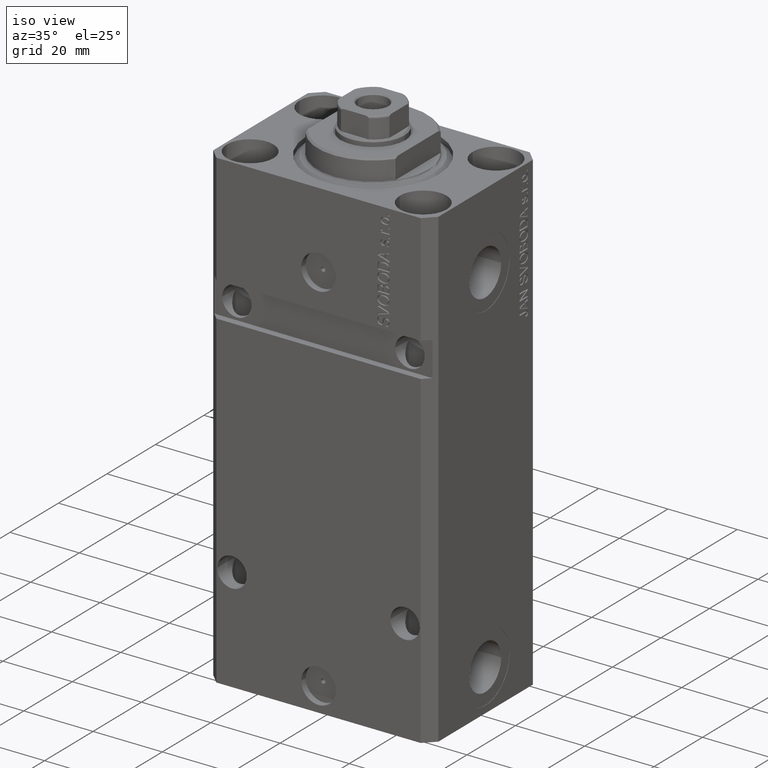
[diagram: clean part render]
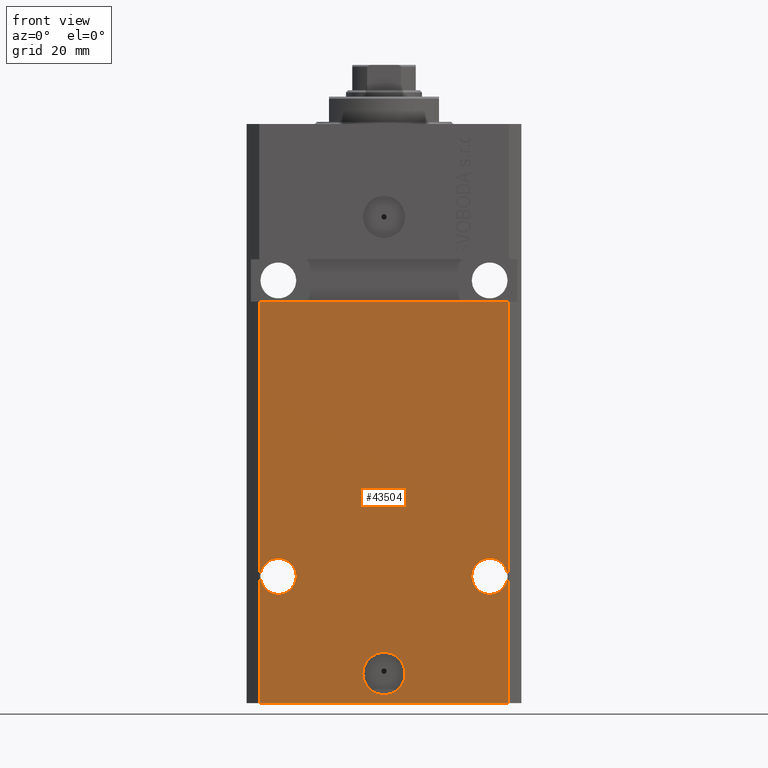
[diagram: tour spotlight — one face highlighted and labeled with its STEP entity id]
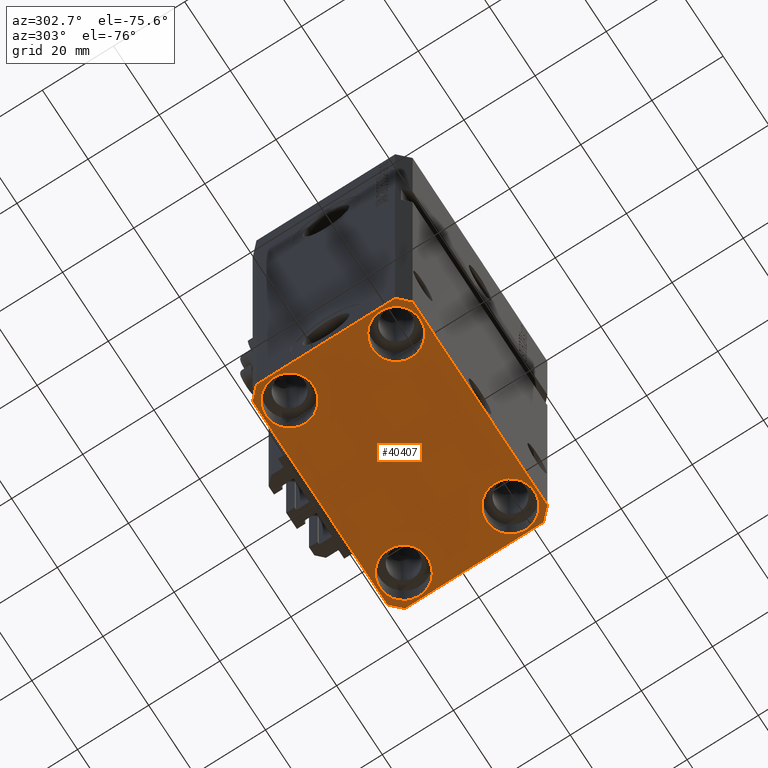
[diagram: tour spotlight — one face highlighted and labeled with its STEP entity id]
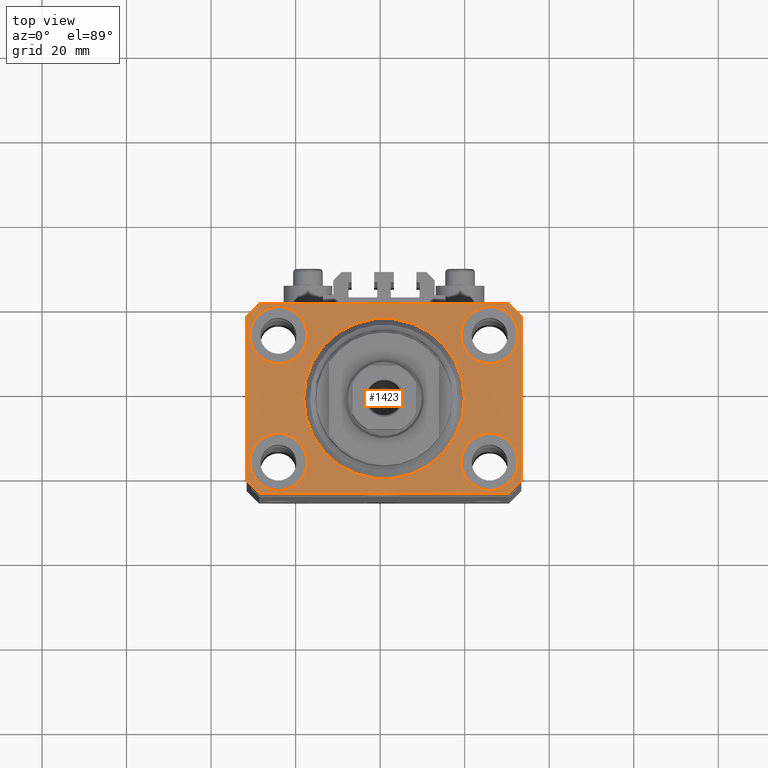
[diagram: tour spotlight — one face highlighted and labeled with its STEP entity id]
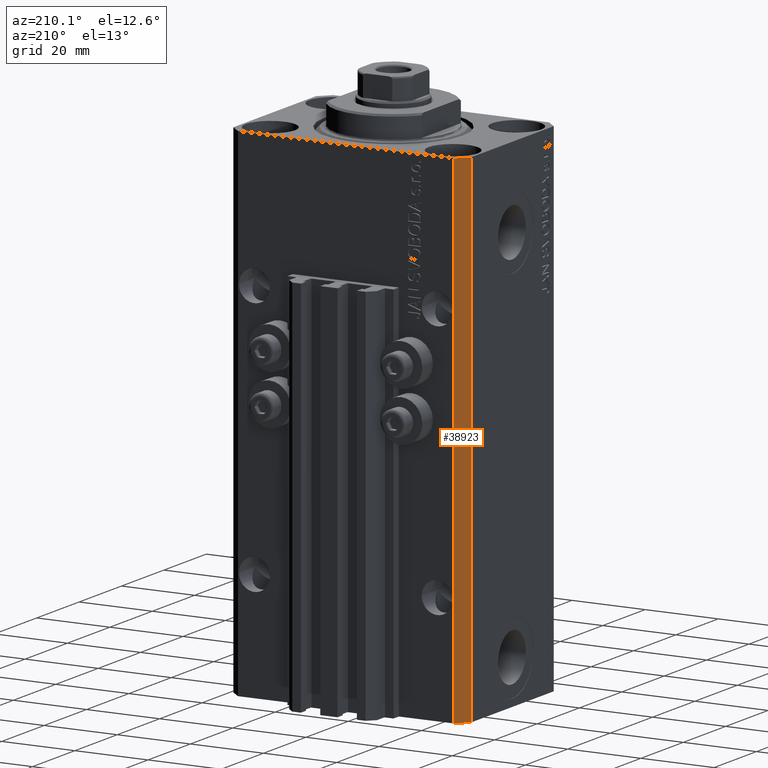
[diagram: tour spotlight — one face highlighted and labeled with its STEP entity id]
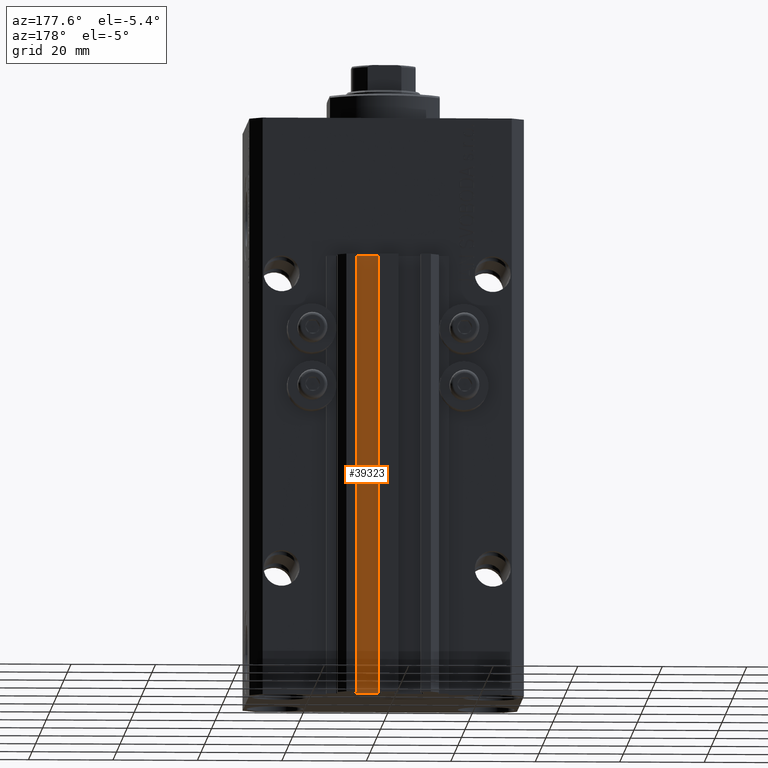
[diagram: tour spotlight — one face highlighted and labeled with its STEP entity id]
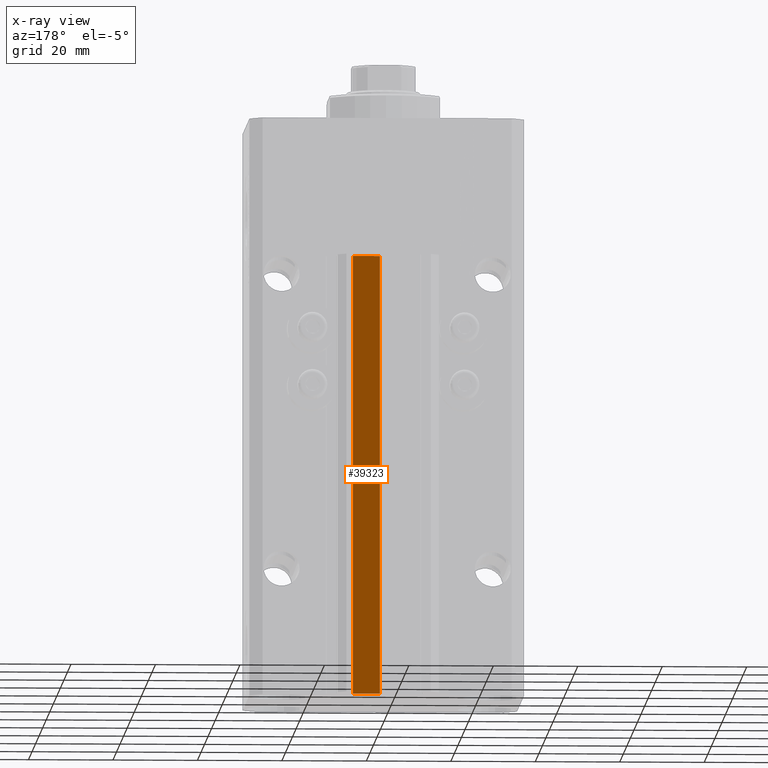
[diagram: x-ray of the same camera — body ghosted, this tour face saturated]
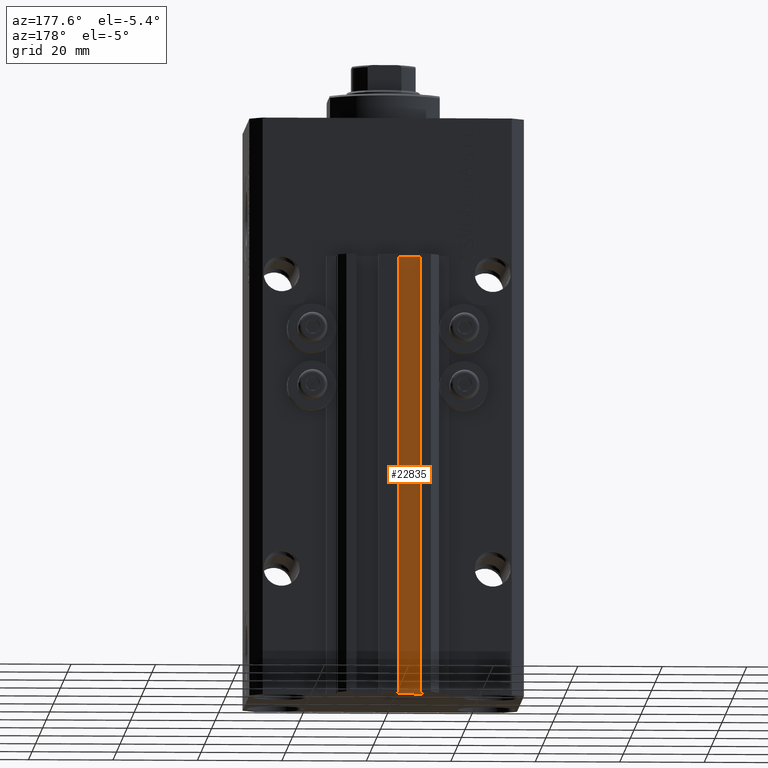
[diagram: tour spotlight — one face highlighted and labeled with its STEP entity id]
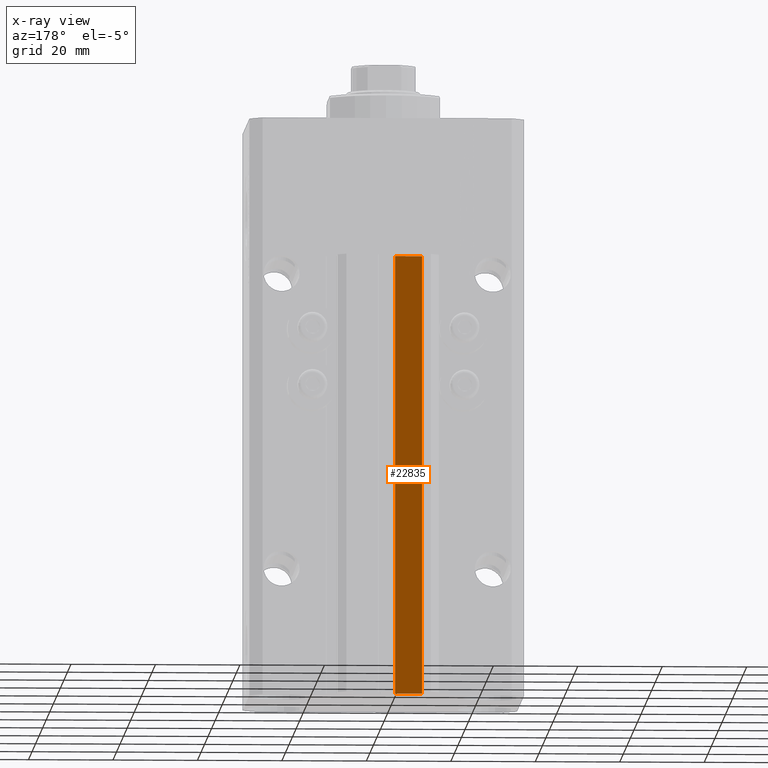
[diagram: x-ray of the same camera — body ghosted, this tour face saturated]
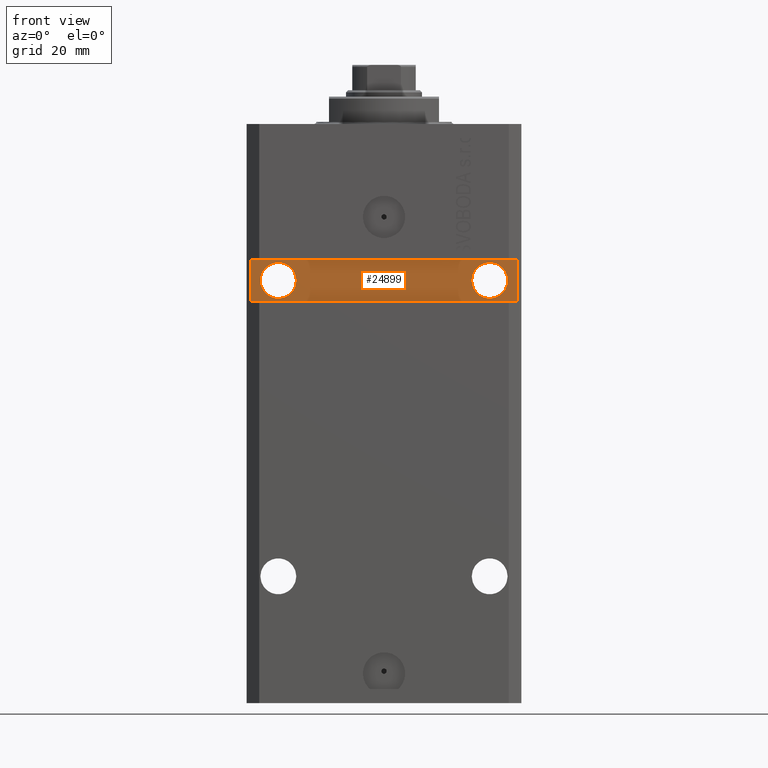
[diagram: tour spotlight — one face highlighted and labeled with its STEP entity id]
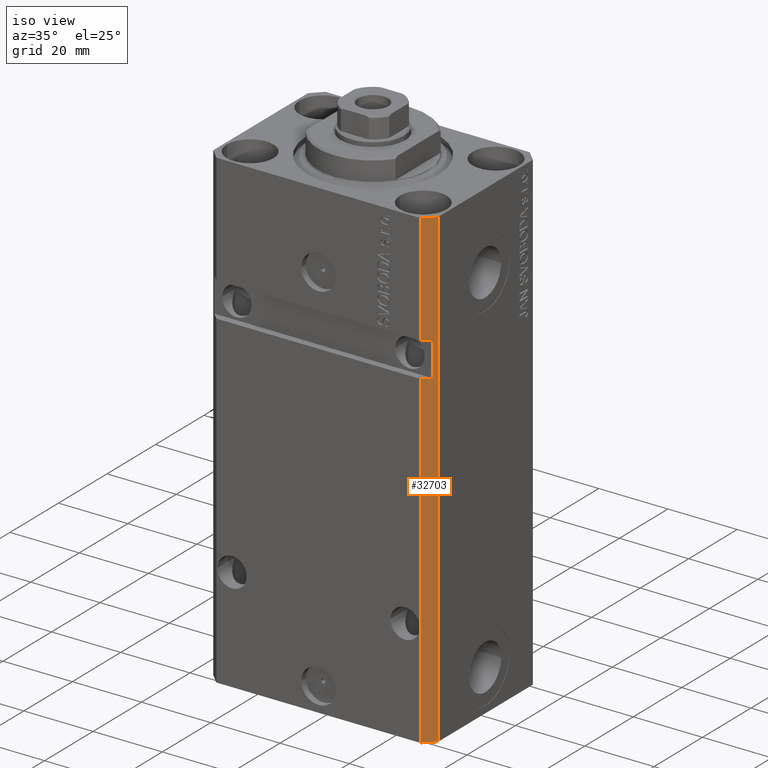
[diagram: tour spotlight — one face highlighted and labeled with its STEP entity id]
A machine part: a face-by-face anatomy tour. The part has 1103 B-rep faces; the first image is the clean iso view, then the 8 largest visible faces are spotlighted one at a time (largest first), each with its STEP entity span.

Face 1 — front view, entity #43504. In plain terms, the highlighted planar face has unit normal (0, -1, 0).
Definition (entity closure, byte-faithful):
#1151 = DIRECTION ( 'NONE',  ( -1.000000000000000000, 0.000000000000000000, 0.000000000000000000 ) ) ;
#1230 = EDGE_CURVE ( 'NONE', #31238, #47081, #7210, .T. ) ;
#2355 = AXIS2_PLACEMENT_3D ( 'NONE', #2619, #29186, #21646 ) ;
#2619 = CARTESIAN_POINT ( 'NONE',  ( 2.646188353185214061E-15, -22.49999999999949551, -130.0000000000000000 ) ) ;
#2810 = CARTESIAN_POINT ( 'NONE',  ( -32.49999999999650413, -22.49999999999949907, -41.99999999999999289 ) ) ;
#2844 = ORIENTED_EDGE ( 'NONE', *, *, #10119, .F. ) ;
#3073 = VECTOR ( 'NONE', #33973, 1000.000000000000000 ) ;
#3621 = CIRCLE ( 'NONE', #17640, 4.249999999989050536 ) ;
#3989 = ORIENTED_EDGE ( 'NONE', *, *, #33066, .F. ) ;
#4256 = CARTESIAN_POINT ( 'NONE',  ( 29.49999999999650058, -22.49999999999949196, -41.99999999999998579 ) ) ;
#5216 = VECTOR ( 'NONE', #18194, 1000.000000000000000 ) ;
#6303 = EDGE_LOOP ( 'NONE', ( #7981, #22852 ) ) ;
#6313 = VERTEX_POINT ( 'NONE', #19589 ) ;
#6452 = CARTESIAN_POINT ( 'NONE',  ( 5.000000000000008882, -22.49999999999949551, -130.0000000000000000 ) ) ;
#6650 = ORIENTED_EDGE ( 'NONE', *, *, #45312, .T. ) ;
#7210 = LINE ( 'NONE', #10869, #5216 ) ;
#7981 = ORIENTED_EDGE ( 'NONE', *, *, #43773, .F. ) ;
#8017 = EDGE_LOOP ( 'NONE', ( #3989, #2844 ) ) ;
#8244 = CARTESIAN_POINT ( 'NONE',  ( -29.49999999999650413, -22.49999999999949907, -41.99999999999999289 ) ) ;
#8386 = EDGE_LOOP ( 'NONE', ( #19110, #17556, #16876, #6650 ) ) ;
#8859 = CIRCLE ( 'NONE', #27448, 4.249999999989050536 ) ;
#9526 = ORIENTED_EDGE ( 'NONE', *, *, #35673, .F. ) ;
#10119 = EDGE_CURVE ( 'NONE', #40718, #27186, #40887, .T. ) ;
#10869 = CARTESIAN_POINT ( 'NONE',  ( -29.49999999999650413, -22.49999999999949907, -137.0000000000000000 ) ) ;
#11072 = EDGE_LOOP ( 'NONE', ( #9526, #12609 ) ) ;
#11099 = EDGE_CURVE ( 'NONE', #6313, #38261, #19930, .T. ) ;
#11169 = FACE_OUTER_BOUND ( 'NONE', #8386, .T. ) ;
#12186 = CARTESIAN_POINT ( 'NONE',  ( 20.75000000001096012, -22.49999999999949196, -107.0000000000000000 ) ) ;
#12609 = ORIENTED_EDGE ( 'NONE', *, *, #30296, .F. ) ;
#13436 = CIRCLE ( 'NONE', #15764, 4.249999999989050536 ) ;
#15065 = FACE_BOUND ( 'NONE', #11072, .T. ) ;
#15546 = DIRECTION ( 'NONE',  ( 1.176083712526788232E-16, -1.000000000000000000, 0.000000000000000000 ) ) ;
#15764 = AXIS2_PLACEMENT_3D ( 'NONE', #40063, #47140, #17147 ) ;
#16256 = VERTEX_POINT ( 'NONE', #44125 ) ;
#16876 = ORIENTED_EDGE ( 'NONE', *, *, #20557, .T. ) ;
#17147 = DIRECTION ( 'NONE',  ( 1.000000000000000000, 0.000000000000000000, 0.000000000000000000 ) ) ;
#17556 = ORIENTED_EDGE ( 'NONE', *, *, #1230, .F. ) ;
#17640 = AXIS2_PLACEMENT_3D ( 'NONE', #26017, #40880, #22366 ) ;
#18194 = DIRECTION ( 'NONE',  ( 0.000000000000000000, 0.000000000000000000, 1.000000000000000000 ) ) ;
#18856 = LINE ( 'NONE', #19348, #3073 ) ;
#19110 = ORIENTED_EDGE ( 'NONE', *, *, #29956, .F. ) ;
#19208 = DIRECTION ( 'NONE',  ( 1.000000000000000000, 1.176083712526788232E-16, 0.000000000000000000 ) ) ;
#19348 = CARTESIAN_POINT ( 'NONE',  ( -29.49999999999650413, -22.49999999999949907, -137.0000000000000000 ) ) ;
#19589 = CARTESIAN_POINT ( 'NONE',  ( -5.000000000000003553, -22.49999999999949551, -130.0000000000000000 ) ) ;
#19602 = VECTOR ( 'NONE', #37006, 1000.000000000000000 ) ;
#19930 = CIRCLE ( 'NONE', #26913, 5.000000000000006217 ) ;
#20557 = EDGE_CURVE ( 'NONE', #31238, #16256, #18856, .T. ) ;
#20892 = DIRECTION ( 'NONE',  ( -1.000000000000000000, 0.000000000000000000, 0.000000000000000000 ) ) ;
#21646 = DIRECTION ( 'NONE',  ( 1.000000000000000000, 0.000000000000000000, 0.000000000000000000 ) ) ;
#21650 = DIRECTION ( 'NONE',  ( 1.176083712526788232E-16, -1.000000000000000000, 0.000000000000000000 ) ) ;
#21671 = VERTEX_POINT ( 'NONE', #4256 ) ;
#22142 = LINE ( 'NONE', #22857, #19602 ) ;
#22366 = DIRECTION ( 'NONE',  ( 1.000000000000000000, 0.000000000000000000, 0.000000000000000000 ) ) ;
#22604 = AXIS2_PLACEMENT_3D ( 'NONE', #26046, #40909, #19208 ) ;
#22635 = CARTESIAN_POINT ( 'NONE',  ( -25.00000000000000355, -22.49999999999949907, -107.0000000000000000 ) ) ;
#22852 = ORIENTED_EDGE ( 'NONE', *, *, #11099, .F. ) ;
#22857 = CARTESIAN_POINT ( 'NONE',  ( 29.49999999999650413, -22.49999999999949196, -137.0000000000000000 ) ) ;
#23388 = CIRCLE ( 'NONE', #2355, 5.000000000000006217 ) ;
#25305 = DIRECTION ( 'NONE',  ( 1.000000000000000000, 0.000000000000000000, 0.000000000000000000 ) ) ;
#25321 = CARTESIAN_POINT ( 'NONE',  ( -29.24999999998905409, -22.49999999999949907, -107.0000000000000000 ) ) ;
#25437 = CARTESIAN_POINT ( 'NONE',  ( -29.49999999999650413, -22.49999999999949907, -137.0000000000000000 ) ) ;
#26017 = CARTESIAN_POINT ( 'NONE',  ( 25.00000000000001066, -22.49999999999949196, -107.0000000000000000 ) ) ;
#26046 = CARTESIAN_POINT ( 'NONE',  ( -29.49999999999650413, -22.49999999999949907, -137.0000000000000000 ) ) ;
#26109 = AXIS2_PLACEMENT_3D ( 'NONE', #22635, #15546, #1151 ) ;
#26285 = FACE_BOUND ( 'NONE', #8017, .T. ) ;
#26913 = AXIS2_PLACEMENT_3D ( 'NONE', #36978, #21650, #25305 ) ;
#27186 = VERTEX_POINT ( 'NONE', #36333 ) ;
#27448 = AXIS2_PLACEMENT_3D ( 'NONE', #43552, #46731, #20892 ) ;
#29144 = LINE ( 'NONE', #2810, #36806 ) ;
#29186 = DIRECTION ( 'NONE',  ( 1.176083712526788232E-16, -1.000000000000000000, 0.000000000000000000 ) ) ;
#29956 = EDGE_CURVE ( 'NONE', #47081, #21671, #29144, .T. ) ;
#30296 = EDGE_CURVE ( 'NONE', #37591, #44113, #13436, .T. ) ;
#30436 = PLANE ( 'NONE',  #22604 ) ;
#31238 = VERTEX_POINT ( 'NONE', #25437 ) ;
#33066 = EDGE_CURVE ( 'NONE', #27186, #40718, #8859, .T. ) ;
#33973 = DIRECTION ( 'NONE',  ( 1.000000000000000000, 1.176083712526788232E-16, 0.000000000000000000 ) ) ;
#35673 = EDGE_CURVE ( 'NONE', #44113, #37591, #3621, .T. ) ;
#35730 = CARTESIAN_POINT ( 'NONE',  ( 29.24999999998906119, -22.49999999999949196, -107.0000000000000000 ) ) ;
#36333 = CARTESIAN_POINT ( 'NONE',  ( -20.75000000001095302, -22.49999999999949907, -107.0000000000000000 ) ) ;
#36806 = VECTOR ( 'NONE', #46958, 1000.000000000000000 ) ;
#36978 = CARTESIAN_POINT ( 'NONE',  ( 2.646188353185214061E-15, -22.49999999999949551, -130.0000000000000000 ) ) ;
#37006 = DIRECTION ( 'NONE',  ( 0.000000000000000000, 0.000000000000000000, 1.000000000000000000 ) ) ;
#37591 = VERTEX_POINT ( 'NONE', #12186 ) ;
#38261 = VERTEX_POINT ( 'NONE', #6452 ) ;
#40063 = CARTESIAN_POINT ( 'NONE',  ( 25.00000000000001066, -22.49999999999949196, -107.0000000000000000 ) ) ;
#40718 = VERTEX_POINT ( 'NONE', #25321 ) ;
#40880 = DIRECTION ( 'NONE',  ( 1.176083712526788232E-16, -1.000000000000000000, 0.000000000000000000 ) ) ;
#40887 = CIRCLE ( 'NONE', #26109, 4.249999999989050536 ) ;
#40909 = DIRECTION ( 'NONE',  ( 1.176083712526788232E-16, -1.000000000000000000, 0.000000000000000000 ) ) ;
#43504 = ADVANCED_FACE ( 'NONE', ( #44582, #15065, #26285, #11169 ), #30436, .T. ) ;
#43552 = CARTESIAN_POINT ( 'NONE',  ( -25.00000000000000355, -22.49999999999949907, -107.0000000000000000 ) ) ;
#43773 = EDGE_CURVE ( 'NONE', #38261, #6313, #23388, .T. ) ;
#44113 = VERTEX_POINT ( 'NONE', #35730 ) ;
#44125 = CARTESIAN_POINT ( 'NONE',  ( 29.49999999999650413, -22.49999999999949196, -137.0000000000000000 ) ) ;
#44582 = FACE_BOUND ( 'NONE', #6303, .T. ) ;
#45312 = EDGE_CURVE ( 'NONE', #16256, #21671, #22142, .T. ) ;
#46731 = DIRECTION ( 'NONE',  ( 1.176083712526788232E-16, -1.000000000000000000, 0.000000000000000000 ) ) ;
#46958 = DIRECTION ( 'NONE',  ( 1.000000000000000000, 1.067522139062765303E-16, 1.067522139062765303E-16 ) ) ;
#47081 = VERTEX_POINT ( 'NONE', #8244 ) ;
#47140 = DIRECTION ( 'NONE',  ( 1.176083712526788232E-16, -1.000000000000000000, 0.000000000000000000 ) ) ;

Face 2 — auxiliary view, entity #40407. In plain terms, the highlighted planar face has unit normal (0, 0, 1).
Definition (entity closure, byte-faithful):
#5 = AXIS2_PLACEMENT_3D ( 'NONE', #24964, #13721, #47138 ) ;
#129 = EDGE_CURVE ( 'NONE', #22444, #44222, #33994, .T. ) ;
#169 = CARTESIAN_POINT ( 'NONE',  ( -18.24999999997747224, 15.00000000000000000, -137.0000000000000000 ) ) ;
#1071 = ORIENTED_EDGE ( 'NONE', *, *, #27913, .F. ) ;
#1285 = CIRCLE ( 'NONE', #2049, 6.750000000022533087 ) ;
#2049 = AXIS2_PLACEMENT_3D ( 'NONE', #41381, #30418, #8225 ) ;
#2069 = DIRECTION ( 'NONE',  ( 1.334402673828349134E-14, 1.000000000000000000, 0.000000000000000000 ) ) ;
#2270 = VERTEX_POINT ( 'NONE', #32080 ) ;
#2274 = FACE_BOUND ( 'NONE', #41077, .T. ) ;
#2330 = CIRCLE ( 'NONE', #16364, 6.750000000041541881 ) ;
#2640 = EDGE_CURVE ( 'NONE', #15336, #26915, #4099, .T. ) ;
#2757 = ORIENTED_EDGE ( 'NONE', *, *, #39141, .F. ) ;
#3015 = ORIENTED_EDGE ( 'NONE', *, *, #129, .T. ) ;
#3073 = VECTOR ( 'NONE', #33973, 1000.000000000000000 ) ;
#3831 = ORIENTED_EDGE ( 'NONE', *, *, #14079, .T. ) ;
#4099 = LINE ( 'NONE', #18975, #30079 ) ;
#4329 = EDGE_CURVE ( 'NONE', #16256, #29843, #39800, .T. ) ;
#4417 = VERTEX_POINT ( 'NONE', #47599 ) ;
#5088 = CIRCLE ( 'NONE', #29963, 6.750000000022533087 ) ;
#5188 = AXIS2_PLACEMENT_3D ( 'NONE', #19072, #22742, #18596 ) ;
#5979 = CARTESIAN_POINT ( 'NONE',  ( 32.49999999999651124, -19.49999999999949196, -137.0000000000000000 ) ) ;
#6114 = DIRECTION ( 'NONE',  ( 1.000000000000000000, 0.000000000000000000, 0.000000000000000000 ) ) ;
#6389 = CARTESIAN_POINT ( 'NONE',  ( 24.99999999999999645, 15.00000000000000888, -137.0000000000000000 ) ) ;
#6475 = LINE ( 'NONE', #36220, #13302 ) ;
#6682 = VERTEX_POINT ( 'NONE', #28768 ) ;
#7681 = LINE ( 'NONE', #29874, #11550 ) ;
#8225 = DIRECTION ( 'NONE',  ( 1.000000000000000000, 0.000000000000000000, 0.000000000000000000 ) ) ;
#9973 = VERTEX_POINT ( 'NONE', #169 ) ;
#10053 = VECTOR ( 'NONE', #12447, 1000.000000000000000 ) ;
#10200 = AXIS2_PLACEMENT_3D ( 'NONE', #36349, #47797, #6114 ) ;
#10232 = EDGE_CURVE ( 'NONE', #2270, #9973, #5088, .T. ) ;
#10661 = AXIS2_PLACEMENT_3D ( 'NONE', #24203, #32489, #22215 ) ;
#10715 = ORIENTED_EDGE ( 'NONE', *, *, #45756, .T. ) ;
#10989 = DIRECTION ( 'NONE',  ( -0.000000000000000000, -0.000000000000000000, 1.000000000000000000 ) ) ;
#11550 = VECTOR ( 'NONE', #17529, 1000.000000000000114 ) ;
#11837 = VERTEX_POINT ( 'NONE', #30884 ) ;
#12447 = DIRECTION ( 'NONE',  ( 0.000000000000000000, -1.000000000000000000, 0.000000000000000000 ) ) ;
#12458 = ORIENTED_EDGE ( 'NONE', *, *, #14704, .T. ) ;
#12767 = DIRECTION ( 'NONE',  ( -1.000000000000000000, -2.352167425053553784E-16, 0.000000000000000000 ) ) ;
#12923 = ORIENTED_EDGE ( 'NONE', *, *, #20557, .F. ) ;
#13302 = VECTOR ( 'NONE', #2069, 1000.000000000000000 ) ;
#13651 = CARTESIAN_POINT ( 'NONE',  ( -25.00000000000000355, -15.00000000000000000, -137.0000000000000000 ) ) ;
#13721 = DIRECTION ( 'NONE',  ( -0.000000000000000000, -0.000000000000000000, 1.000000000000000000 ) ) ;
#14079 = EDGE_CURVE ( 'NONE', #9973, #2270, #1285, .T. ) ;
#14704 = EDGE_CURVE ( 'NONE', #32696, #11837, #30133, .T. ) ;
#14852 = CARTESIAN_POINT ( 'NONE',  ( -29.49999999999650413, 22.49999999999949907, -137.0000000000000000 ) ) ;
#15336 = VERTEX_POINT ( 'NONE', #19596 ) ;
#15394 = EDGE_LOOP ( 'NONE', ( #41307, #12458 ) ) ;
#16256 = VERTEX_POINT ( 'NONE', #44125 ) ;
#16364 = AXIS2_PLACEMENT_3D ( 'NONE', #13651, #43406, #18979 ) ;
#17153 = PLANE ( 'NONE',  #47443 ) ;
#17243 = DIRECTION ( 'NONE',  ( -0.000000000000000000, -0.000000000000000000, 1.000000000000000000 ) ) ;
#17529 = DIRECTION ( 'NONE',  ( 0.7071067811865474617, -0.7071067811865474617, 0.000000000000000000 ) ) ;
#18054 = VERTEX_POINT ( 'NONE', #44856 ) ;
#18517 = FACE_BOUND ( 'NONE', #19892, .T. ) ;
#18596 = DIRECTION ( 'NONE',  ( 1.000000000000000000, 0.000000000000000000, 0.000000000000000000 ) ) ;
#18650 = EDGE_LOOP ( 'NONE', ( #2757, #33746, #1071, #32759, #12923, #38943, #29800, #21469 ) ) ;
#18856 = LINE ( 'NONE', #19348, #3073 ) ;
#18944 = EDGE_CURVE ( 'NONE', #45540, #18054, #45847, .T. ) ;
#18975 = CARTESIAN_POINT ( 'NONE',  ( 32.49999999999702993, 19.49999999999945999, -137.0000000000000000 ) ) ;
#18979 = DIRECTION ( 'NONE',  ( 1.000000000000000000, 0.000000000000000000, 0.000000000000000000 ) ) ;
#19072 = CARTESIAN_POINT ( 'NONE',  ( 24.99999999999999645, 15.00000000000000888, -137.0000000000000000 ) ) ;
#19348 = CARTESIAN_POINT ( 'NONE',  ( -29.49999999999650413, -22.49999999999949907, -137.0000000000000000 ) ) ;
#19596 = CARTESIAN_POINT ( 'NONE',  ( 32.49999999999702993, 19.49999999999945999, -137.0000000000000000 ) ) ;
#19892 = EDGE_LOOP ( 'NONE', ( #42096, #31424 ) ) ;
#20557 = EDGE_CURVE ( 'NONE', #31238, #16256, #18856, .T. ) ;
#21355 = LINE ( 'NONE', #31840, #32798 ) ;
#21469 = ORIENTED_EDGE ( 'NONE', *, *, #47630, .F. ) ;
#21665 = EDGE_CURVE ( 'NONE', #18054, #31238, #7681, .T. ) ;
#22188 = FACE_BOUND ( 'NONE', #15394, .T. ) ;
#22215 = DIRECTION ( 'NONE',  ( 1.000000000000000000, 0.000000000000000000, 0.000000000000000000 ) ) ;
#22444 = VERTEX_POINT ( 'NONE', #34644 ) ;
#22742 = DIRECTION ( 'NONE',  ( -0.000000000000000000, -0.000000000000000000, 1.000000000000000000 ) ) ;
#23234 = CARTESIAN_POINT ( 'NONE',  ( -32.49999999999650413, 19.49999999999949907, -137.0000000000000000 ) ) ;
#24203 = CARTESIAN_POINT ( 'NONE',  ( 25.00000000000000355, -15.00000000000000000, -137.0000000000000000 ) ) ;
#24964 = CARTESIAN_POINT ( 'NONE',  ( 25.00000000000000355, -15.00000000000000000, -137.0000000000000000 ) ) ;
#24972 = EDGE_CURVE ( 'NONE', #6682, #4417, #2330, .T. ) ;
#25437 = CARTESIAN_POINT ( 'NONE',  ( -29.49999999999650413, -22.49999999999949907, -137.0000000000000000 ) ) ;
#25612 = DIRECTION ( 'NONE',  ( 1.000000000000000000, 0.000000000000000000, -0.000000000000000000 ) ) ;
#25634 = DIRECTION ( 'NONE',  ( 1.000000000000000000, 0.000000000000000000, 0.000000000000000000 ) ) ;
#26359 = EDGE_CURVE ( 'NONE', #11837, #32696, #45209, .T. ) ;
#26915 = VERTEX_POINT ( 'NONE', #43281 ) ;
#27913 = EDGE_CURVE ( 'NONE', #29843, #15336, #6475, .T. ) ;
#28367 = ORIENTED_EDGE ( 'NONE', *, *, #10232, .T. ) ;
#28458 = CARTESIAN_POINT ( 'NONE',  ( -25.00000000000000355, 15.00000000000000000, -137.0000000000000000 ) ) ;
#28603 = LINE ( 'NONE', #42993, #47411 ) ;
#28768 = CARTESIAN_POINT ( 'NONE',  ( -31.75000000004154899, -15.00000000000000000, -137.0000000000000000 ) ) ;
#29735 = FACE_BOUND ( 'NONE', #38183, .T. ) ;
#29800 = ORIENTED_EDGE ( 'NONE', *, *, #18944, .F. ) ;
#29843 = VERTEX_POINT ( 'NONE', #5979 ) ;
#29874 = CARTESIAN_POINT ( 'NONE',  ( -32.49999999999650413, -19.49999999999949907, -137.0000000000000000 ) ) ;
#29963 = AXIS2_PLACEMENT_3D ( 'NONE', #28458, #17243, #47230 ) ;
#30079 = VECTOR ( 'NONE', #32978, 1000.000000000000000 ) ;
#30133 = CIRCLE ( 'NONE', #10661, 6.749999999977465137 ) ;
#30418 = DIRECTION ( 'NONE',  ( -0.000000000000000000, -0.000000000000000000, 1.000000000000000000 ) ) ;
#30884 = CARTESIAN_POINT ( 'NONE',  ( 18.25000000002253842, -15.00000000000000000, -137.0000000000000000 ) ) ;
#30915 = VECTOR ( 'NONE', #43452, 1000.000000000000000 ) ;
#31238 = VERTEX_POINT ( 'NONE', #25437 ) ;
#31262 = AXIS2_PLACEMENT_3D ( 'NONE', #6389, #10989, #25634 ) ;
#31424 = ORIENTED_EDGE ( 'NONE', *, *, #44243, .T. ) ;
#31840 = CARTESIAN_POINT ( 'NONE',  ( -29.49999999999650413, 22.49999999999949907, -137.0000000000000000 ) ) ;
#32045 = FACE_OUTER_BOUND ( 'NONE', #18650, .T. ) ;
#32080 = CARTESIAN_POINT ( 'NONE',  ( -31.75000000002253842, 15.00000000000000000, -137.0000000000000000 ) ) ;
#32489 = DIRECTION ( 'NONE',  ( -0.000000000000000000, -0.000000000000000000, 1.000000000000000000 ) ) ;
#32696 = VERTEX_POINT ( 'NONE', #44143 ) ;
#32759 = ORIENTED_EDGE ( 'NONE', *, *, #4329, .F. ) ;
#32798 = VECTOR ( 'NONE', #46704, 1000.000000000000114 ) ;
#32978 = DIRECTION ( 'NONE',  ( -0.7071067811865352493, 0.7071067811865597852, 0.000000000000000000 ) ) ;
#33543 = CIRCLE ( 'NONE', #10200, 6.750000000041541881 ) ;
#33746 = ORIENTED_EDGE ( 'NONE', *, *, #2640, .F. ) ;
#33973 = DIRECTION ( 'NONE',  ( 1.000000000000000000, 1.176083712526788232E-16, 0.000000000000000000 ) ) ;
#33994 = CIRCLE ( 'NONE', #5188, 6.749999999958452790 ) ;
#34644 = CARTESIAN_POINT ( 'NONE',  ( 18.25000000004154543, 15.00000000000000888, -137.0000000000000000 ) ) ;
#34673 = CARTESIAN_POINT ( 'NONE',  ( 31.74999999995845101, 15.00000000000000888, -137.0000000000000000 ) ) ;
#35904 = CARTESIAN_POINT ( 'NONE',  ( 29.49999999999650413, -22.49999999999949196, -137.0000000000000000 ) ) ;
#36220 = CARTESIAN_POINT ( 'NONE',  ( 32.49999999999651124, -19.49999999999949196, -137.0000000000000000 ) ) ;
#36349 = CARTESIAN_POINT ( 'NONE',  ( -25.00000000000000355, -15.00000000000000000, -137.0000000000000000 ) ) ;
#37050 = CARTESIAN_POINT ( 'NONE',  ( 0.000000000000000000, 0.000000000000000000, -137.0000000000000000 ) ) ;
#38183 = EDGE_LOOP ( 'NONE', ( #28367, #3831 ) ) ;
#38374 = VERTEX_POINT ( 'NONE', #14852 ) ;
#38943 = ORIENTED_EDGE ( 'NONE', *, *, #21665, .F. ) ;
#39141 = EDGE_CURVE ( 'NONE', #26915, #38374, #28603, .T. ) ;
#39800 = LINE ( 'NONE', #35904, #30915 ) ;
#40407 = ADVANCED_FACE ( 'NONE', ( #18517, #22188, #2274, #29735, #32045 ), #17153, .F. ) ;
#41077 = EDGE_LOOP ( 'NONE', ( #3015, #10715 ) ) ;
#41307 = ORIENTED_EDGE ( 'NONE', *, *, #26359, .T. ) ;
#41381 = CARTESIAN_POINT ( 'NONE',  ( -25.00000000000000355, 15.00000000000000000, -137.0000000000000000 ) ) ;
#42096 = ORIENTED_EDGE ( 'NONE', *, *, #24972, .T. ) ;
#42993 = CARTESIAN_POINT ( 'NONE',  ( 29.49999999999707967, 22.49999999999951328, -137.0000000000000000 ) ) ;
#43281 = CARTESIAN_POINT ( 'NONE',  ( 29.49999999999707967, 22.49999999999951328, -137.0000000000000000 ) ) ;
#43406 = DIRECTION ( 'NONE',  ( -0.000000000000000000, -0.000000000000000000, 1.000000000000000000 ) ) ;
#43452 = DIRECTION ( 'NONE',  ( 0.7071067811865483499, 0.7071067811865466846, 0.000000000000000000 ) ) ;
#44125 = CARTESIAN_POINT ( 'NONE',  ( 29.49999999999650413, -22.49999999999949196, -137.0000000000000000 ) ) ;
#44143 = CARTESIAN_POINT ( 'NONE',  ( 31.74999999997746869, -15.00000000000000000, -137.0000000000000000 ) ) ;
#44222 = VERTEX_POINT ( 'NONE', #34673 ) ;
#44243 = EDGE_CURVE ( 'NONE', #4417, #6682, #33543, .T. ) ;
#44606 = DIRECTION ( 'NONE',  ( 0.000000000000000000, 0.000000000000000000, 1.000000000000000000 ) ) ;
#44856 = CARTESIAN_POINT ( 'NONE',  ( -32.49999999999650413, -19.49999999999949907, -137.0000000000000000 ) ) ;
#45209 = CIRCLE ( 'NONE', #5, 6.749999999977465137 ) ;
#45540 = VERTEX_POINT ( 'NONE', #23234 ) ;
#45756 = EDGE_CURVE ( 'NONE', #44222, #22444, #46843, .T. ) ;
#45847 = LINE ( 'NONE', #46093, #10053 ) ;
#46093 = CARTESIAN_POINT ( 'NONE',  ( -32.49999999999650413, 19.49999999999949907, -137.0000000000000000 ) ) ;
#46704 = DIRECTION ( 'NONE',  ( -0.7071067811865474617, -0.7071067811865474617, 0.000000000000000000 ) ) ;
#46843 = CIRCLE ( 'NONE', #31262, 6.749999999958452790 ) ;
#47138 = DIRECTION ( 'NONE',  ( 1.000000000000000000, 0.000000000000000000, 0.000000000000000000 ) ) ;
#47230 = DIRECTION ( 'NONE',  ( 1.000000000000000000, 0.000000000000000000, 0.000000000000000000 ) ) ;
#47411 = VECTOR ( 'NONE', #12767, 1000.000000000000000 ) ;
#47443 = AXIS2_PLACEMENT_3D ( 'NONE', #37050, #44606, #25612 ) ;
#47599 = CARTESIAN_POINT ( 'NONE',  ( -18.24999999995845812, -15.00000000000000000, -137.0000000000000000 ) ) ;
#47630 = EDGE_CURVE ( 'NONE', #38374, #45540, #21355, .T. ) ;
#47797 = DIRECTION ( 'NONE',  ( -0.000000000000000000, -0.000000000000000000, 1.000000000000000000 ) ) ;

Face 3 — top view, entity #1423. In plain terms, the highlighted planar face has unit normal (0, 0, 1).
Definition (entity closure, byte-faithful):
#566 = ORIENTED_EDGE ( 'NONE', *, *, #8785, .F. ) ;
#639 = ORIENTED_EDGE ( 'NONE', *, *, #30215, .T. ) ;
#1315 = LINE ( 'NONE', #20115, #15927 ) ;
#1423 = ADVANCED_FACE ( 'NONE', ( #23044, #7934, #16872, #26948, #8423, #38177 ), #19649, .T. ) ;
#1560 = DIRECTION ( 'NONE',  ( -1.000000000000000000, -2.352167425053553784E-16, 0.000000000000000000 ) ) ;
#2104 = VECTOR ( 'NONE', #18962, 1000.000000000000000 ) ;
#2163 = CARTESIAN_POINT ( 'NONE',  ( -29.49999999999650413, -22.49999999999949907, 0.000000000000000000 ) ) ;
#2348 = DIRECTION ( 'NONE',  ( 0.000000000000000000, 0.000000000000000000, 1.000000000000000000 ) ) ;
#2672 = ORIENTED_EDGE ( 'NONE', *, *, #14745, .F. ) ;
#2723 = CARTESIAN_POINT ( 'NONE',  ( -32.49999999999650413, -19.49999999999949907, 0.000000000000000000 ) ) ;
#3358 = CARTESIAN_POINT ( 'NONE',  ( 0.000000000000000000, 0.000000000000000000, 0.000000000000000000 ) ) ;
#3790 = VECTOR ( 'NONE', #20308, 1000.000000000000000 ) ;
#3954 = ORIENTED_EDGE ( 'NONE', *, *, #28406, .F. ) ;
#4262 = ORIENTED_EDGE ( 'NONE', *, *, #32099, .T. ) ;
#4283 = DIRECTION ( 'NONE',  ( 1.334402673828349134E-14, 1.000000000000000000, 0.000000000000000000 ) ) ;
#4603 = EDGE_CURVE ( 'NONE', #42597, #23932, #14119, .T. ) ;
#4729 = EDGE_CURVE ( 'NONE', #16688, #32402, #29932, .T. ) ;
#4816 = DIRECTION ( 'NONE',  ( 0.000000000000000000, 0.000000000000000000, 1.000000000000000000 ) ) ;
#5404 = EDGE_LOOP ( 'NONE', ( #6743, #13097 ) ) ;
#5635 = CARTESIAN_POINT ( 'NONE',  ( -31.75000000002253842, 15.00000000000000000, 0.000000000000000000 ) ) ;
#5898 = DIRECTION ( 'NONE',  ( 0.000000000000000000, 0.000000000000000000, 1.000000000000000000 ) ) ;
#5972 = VECTOR ( 'NONE', #10695, 1000.000000000000000 ) ;
#6430 = ORIENTED_EDGE ( 'NONE', *, *, #47322, .F. ) ;
#6440 = CARTESIAN_POINT ( 'NONE',  ( -32.49999999999650413, -19.49999999999949907, 0.000000000000000000 ) ) ;
#6743 = ORIENTED_EDGE ( 'NONE', *, *, #17902, .F. ) ;
#6799 = CARTESIAN_POINT ( 'NONE',  ( -29.49999999999650413, -22.49999999999949907, 0.000000000000000000 ) ) ;
#7113 = CIRCLE ( 'NONE', #34361, 6.749999999977465137 ) ;
#7927 = DIRECTION ( 'NONE',  ( 1.000000000000000000, 0.000000000000000000, 0.000000000000000000 ) ) ;
#7934 = FACE_BOUND ( 'NONE', #40766, .T. ) ;
#8374 = EDGE_CURVE ( 'NONE', #40316, #39513, #1315, .T. ) ;
#8423 = FACE_BOUND ( 'NONE', #5404, .T. ) ;
#8631 = AXIS2_PLACEMENT_3D ( 'NONE', #18438, #22111, #37456 ) ;
#8785 = EDGE_CURVE ( 'NONE', #36329, #36446, #43976, .T. ) ;
#9109 = DIRECTION ( 'NONE',  ( -0.7071067811865474617, -0.7071067811865474617, 0.000000000000000000 ) ) ;
#9232 = AXIS2_PLACEMENT_3D ( 'NONE', #31164, #4816, #19703 ) ;
#10695 = DIRECTION ( 'NONE',  ( 1.000000000000000000, 1.176083712526788232E-16, 0.000000000000000000 ) ) ;
#10766 = CIRCLE ( 'NONE', #9232, 6.750000000041541881 ) ;
#11552 = AXIS2_PLACEMENT_3D ( 'NONE', #13329, #2348, #35768 ) ;
#11579 = DIRECTION ( 'NONE',  ( 0.000000000000000000, 0.000000000000000000, 1.000000000000000000 ) ) ;
#12124 = ORIENTED_EDGE ( 'NONE', *, *, #18739, .T. ) ;
#13097 = ORIENTED_EDGE ( 'NONE', *, *, #17394, .F. ) ;
#13329 = CARTESIAN_POINT ( 'NONE',  ( -25.00000000000000355, 15.00000000000000000, 0.000000000000000000 ) ) ;
#14021 = CIRCLE ( 'NONE', #22581, 6.750000000041541881 ) ;
#14119 = LINE ( 'NONE', #6799, #5972 ) ;
#14745 = EDGE_CURVE ( 'NONE', #42833, #44251, #42613, .T. ) ;
#15447 = CIRCLE ( 'NONE', #11552, 6.750000000022533087 ) ;
#15902 = DIRECTION ( 'NONE',  ( 0.000000000000000000, 0.000000000000000000, 1.000000000000000000 ) ) ;
#15927 = VECTOR ( 'NONE', #1560, 1000.000000000000000 ) ;
#15949 = CARTESIAN_POINT ( 'NONE',  ( 29.49999999999707967, 22.49999999999951328, 0.000000000000000000 ) ) ;
#16365 = CARTESIAN_POINT ( 'NONE',  ( -29.49999999999650413, 22.49999999999949907, 0.000000000000000000 ) ) ;
#16463 = EDGE_LOOP ( 'NONE', ( #6430, #19781 ) ) ;
#16688 = VERTEX_POINT ( 'NONE', #20829 ) ;
#16872 = FACE_BOUND ( 'NONE', #16463, .T. ) ;
#17032 = EDGE_LOOP ( 'NONE', ( #27492, #639, #18982, #22614, #24721, #4262, #20662, #12124 ) ) ;
#17227 = ORIENTED_EDGE ( 'NONE', *, *, #17680, .F. ) ;
#17394 = EDGE_CURVE ( 'NONE', #47953, #37910, #37216, .T. ) ;
#17680 = EDGE_CURVE ( 'NONE', #36446, #36329, #15447, .T. ) ;
#17761 = AXIS2_PLACEMENT_3D ( 'NONE', #3358, #26023, #25096 ) ;
#17902 = EDGE_CURVE ( 'NONE', #37910, #47953, #46587, .T. ) ;
#18211 = CARTESIAN_POINT ( 'NONE',  ( 31.74999999995845101, 15.00000000000000888, 0.000000000000000000 ) ) ;
#18438 = CARTESIAN_POINT ( 'NONE',  ( 24.99999999999999645, 15.00000000000000888, 0.000000000000000000 ) ) ;
#18455 = EDGE_CURVE ( 'NONE', #22294, #18518, #10766, .T. ) ;
#18518 = VERTEX_POINT ( 'NONE', #20651 ) ;
#18557 = AXIS2_PLACEMENT_3D ( 'NONE', #37914, #11579, #7927 ) ;
#18739 = EDGE_CURVE ( 'NONE', #47807, #40316, #38825, .T. ) ;
#18962 = DIRECTION ( 'NONE',  ( 0.000000000000000000, -1.000000000000000000, 0.000000000000000000 ) ) ;
#18982 = ORIENTED_EDGE ( 'NONE', *, *, #4729, .T. ) ;
#19473 = CARTESIAN_POINT ( 'NONE',  ( -19.00000000000000000, 2.326828918379970970E-15, 0.000000000000000000 ) ) ;
#19649 = PLANE ( 'NONE',  #20862 ) ;
#19703 = DIRECTION ( 'NONE',  ( 1.000000000000000000, 0.000000000000000000, 0.000000000000000000 ) ) ;
#19781 = ORIENTED_EDGE ( 'NONE', *, *, #34118, .F. ) ;
#19865 = AXIS2_PLACEMENT_3D ( 'NONE', #27128, #15902, #31277 ) ;
#20115 = CARTESIAN_POINT ( 'NONE',  ( 29.49999999999707967, 22.49999999999951328, 0.000000000000000000 ) ) ;
#20308 = DIRECTION ( 'NONE',  ( -0.7071067811865352493, 0.7071067811865597852, 0.000000000000000000 ) ) ;
#20356 = DIRECTION ( 'NONE',  ( 0.7071067811865483499, 0.7071067811865466846, 0.000000000000000000 ) ) ;
#20651 = CARTESIAN_POINT ( 'NONE',  ( -31.75000000004154899, -15.00000000000000000, 0.000000000000000000 ) ) ;
#20662 = ORIENTED_EDGE ( 'NONE', *, *, #27575, .T. ) ;
#20829 = CARTESIAN_POINT ( 'NONE',  ( -32.49999999999650413, 19.49999999999949907, 0.000000000000000000 ) ) ;
#20836 = LINE ( 'NONE', #23771, #30642 ) ;
#20862 = AXIS2_PLACEMENT_3D ( 'NONE', #46631, #5898, #42721 ) ;
#21869 = CARTESIAN_POINT ( 'NONE',  ( 19.00000000000000000, 0.000000000000000000, 0.000000000000000000 ) ) ;
#22111 = DIRECTION ( 'NONE',  ( 0.000000000000000000, 0.000000000000000000, 1.000000000000000000 ) ) ;
#22294 = VERTEX_POINT ( 'NONE', #45856 ) ;
#22581 = AXIS2_PLACEMENT_3D ( 'NONE', #47349, #28822, #47816 ) ;
#22614 = ORIENTED_EDGE ( 'NONE', *, *, #45769, .T. ) ;
#23044 = FACE_BOUND ( 'NONE', #42868, .T. ) ;
#23293 = DIRECTION ( 'NONE',  ( 1.000000000000000000, 0.000000000000000000, 0.000000000000000000 ) ) ;
#23771 = CARTESIAN_POINT ( 'NONE',  ( 29.49999999999650413, -22.49999999999949196, 0.000000000000000000 ) ) ;
#23778 = CARTESIAN_POINT ( 'NONE',  ( 24.99999999999999645, 15.00000000000000888, 0.000000000000000000 ) ) ;
#23932 = VERTEX_POINT ( 'NONE', #32382 ) ;
#24053 = VERTEX_POINT ( 'NONE', #18211 ) ;
#24721 = ORIENTED_EDGE ( 'NONE', *, *, #4603, .T. ) ;
#25096 = DIRECTION ( 'NONE',  ( 1.000000000000000000, 0.000000000000000000, 0.000000000000000000 ) ) ;
#25145 = CARTESIAN_POINT ( 'NONE',  ( 31.74999999997746869, -15.00000000000000000, 0.000000000000000000 ) ) ;
#25871 = LINE ( 'NONE', #2723, #41358 ) ;
#26023 = DIRECTION ( 'NONE',  ( 0.000000000000000000, 0.000000000000000000, 1.000000000000000000 ) ) ;
#26884 = CARTESIAN_POINT ( 'NONE',  ( 32.49999999999702993, 19.49999999999945999, 0.000000000000000000 ) ) ;
#26948 = FACE_BOUND ( 'NONE', #35635, .T. ) ;
#27128 = CARTESIAN_POINT ( 'NONE',  ( -25.00000000000000355, 15.00000000000000000, 0.000000000000000000 ) ) ;
#27418 = LINE ( 'NONE', #34489, #38337 ) ;
#27492 = ORIENTED_EDGE ( 'NONE', *, *, #8374, .T. ) ;
#27575 = EDGE_CURVE ( 'NONE', #40993, #47807, #33099, .T. ) ;
#28406 = EDGE_CURVE ( 'NONE', #44251, #42833, #7113, .T. ) ;
#28783 = CARTESIAN_POINT ( 'NONE',  ( 32.49999999999702993, 19.49999999999945999, 0.000000000000000000 ) ) ;
#28822 = DIRECTION ( 'NONE',  ( 0.000000000000000000, 0.000000000000000000, 1.000000000000000000 ) ) ;
#29932 = LINE ( 'NONE', #42123, #2104 ) ;
#30215 = EDGE_CURVE ( 'NONE', #39513, #16688, #27418, .T. ) ;
#30642 = VECTOR ( 'NONE', #20356, 1000.000000000000000 ) ;
#31164 = CARTESIAN_POINT ( 'NONE',  ( -25.00000000000000355, -15.00000000000000000, 0.000000000000000000 ) ) ;
#31277 = DIRECTION ( 'NONE',  ( 1.000000000000000000, 0.000000000000000000, 0.000000000000000000 ) ) ;
#32099 = EDGE_CURVE ( 'NONE', #23932, #40993, #20836, .T. ) ;
#32382 = CARTESIAN_POINT ( 'NONE',  ( 29.49999999999650413, -22.49999999999949196, 0.000000000000000000 ) ) ;
#32402 = VERTEX_POINT ( 'NONE', #6440 ) ;
#32484 = DIRECTION ( 'NONE',  ( 0.7071067811865474617, -0.7071067811865474617, 0.000000000000000000 ) ) ;
#32813 = VECTOR ( 'NONE', #4283, 1000.000000000000000 ) ;
#32990 = DIRECTION ( 'NONE',  ( 1.000000000000000000, 0.000000000000000000, 0.000000000000000000 ) ) ;
#33099 = LINE ( 'NONE', #45013, #32813 ) ;
#33188 = DIRECTION ( 'NONE',  ( 0.000000000000000000, 0.000000000000000000, 1.000000000000000000 ) ) ;
#33683 = AXIS2_PLACEMENT_3D ( 'NONE', #23778, #45968, #23293 ) ;
#34118 = EDGE_CURVE ( 'NONE', #35804, #24053, #45348, .T. ) ;
#34361 = AXIS2_PLACEMENT_3D ( 'NONE', #40292, #37101, #32990 ) ;
#34489 = CARTESIAN_POINT ( 'NONE',  ( -29.49999999999650413, 22.49999999999949907, 0.000000000000000000 ) ) ;
#35635 = EDGE_LOOP ( 'NONE', ( #17227, #566 ) ) ;
#35768 = DIRECTION ( 'NONE',  ( 1.000000000000000000, 0.000000000000000000, 0.000000000000000000 ) ) ;
#35804 = VERTEX_POINT ( 'NONE', #42152 ) ;
#36329 = VERTEX_POINT ( 'NONE', #5635 ) ;
#36446 = VERTEX_POINT ( 'NONE', #43671 ) ;
#37101 = DIRECTION ( 'NONE',  ( 0.000000000000000000, 0.000000000000000000, 1.000000000000000000 ) ) ;
#37216 = CIRCLE ( 'NONE', #17761, 19.00000000000000000 ) ;
#37456 = DIRECTION ( 'NONE',  ( 1.000000000000000000, 0.000000000000000000, 0.000000000000000000 ) ) ;
#37910 = VERTEX_POINT ( 'NONE', #21869 ) ;
#37914 = CARTESIAN_POINT ( 'NONE',  ( 0.000000000000000000, 0.000000000000000000, 0.000000000000000000 ) ) ;
#38177 = FACE_OUTER_BOUND ( 'NONE', #17032, .T. ) ;
#38337 = VECTOR ( 'NONE', #9109, 1000.000000000000114 ) ;
#38825 = LINE ( 'NONE', #26884, #3790 ) ;
#39344 = ORIENTED_EDGE ( 'NONE', *, *, #18455, .F. ) ;
#39513 = VERTEX_POINT ( 'NONE', #16365 ) ;
#40040 = DIRECTION ( 'NONE',  ( 1.000000000000000000, 0.000000000000000000, 0.000000000000000000 ) ) ;
#40292 = CARTESIAN_POINT ( 'NONE',  ( 25.00000000000000355, -15.00000000000000000, 0.000000000000000000 ) ) ;
#40316 = VERTEX_POINT ( 'NONE', #15949 ) ;
#40766 = EDGE_LOOP ( 'NONE', ( #3954, #2672 ) ) ;
#40916 = ORIENTED_EDGE ( 'NONE', *, *, #42330, .F. ) ;
#40993 = VERTEX_POINT ( 'NONE', #44256 ) ;
#41358 = VECTOR ( 'NONE', #32484, 1000.000000000000114 ) ;
#42123 = CARTESIAN_POINT ( 'NONE',  ( -32.49999999999650413, 19.49999999999949907, 0.000000000000000000 ) ) ;
#42152 = CARTESIAN_POINT ( 'NONE',  ( 18.25000000004154543, 15.00000000000000888, 0.000000000000000000 ) ) ;
#42330 = EDGE_CURVE ( 'NONE', #18518, #22294, #14021, .T. ) ;
#42597 = VERTEX_POINT ( 'NONE', #2163 ) ;
#42613 = CIRCLE ( 'NONE', #43384, 6.749999999977465137 ) ;
#42721 = DIRECTION ( 'NONE',  ( 1.000000000000000000, 0.000000000000000000, -0.000000000000000000 ) ) ;
#42833 = VERTEX_POINT ( 'NONE', #45537 ) ;
#42868 = EDGE_LOOP ( 'NONE', ( #39344, #40916 ) ) ;
#43384 = AXIS2_PLACEMENT_3D ( 'NONE', #43925, #33188, #40040 ) ;
#43671 = CARTESIAN_POINT ( 'NONE',  ( -18.24999999997747224, 15.00000000000000000, 0.000000000000000000 ) ) ;
#43925 = CARTESIAN_POINT ( 'NONE',  ( 25.00000000000000355, -15.00000000000000000, 0.000000000000000000 ) ) ;
#43976 = CIRCLE ( 'NONE', #19865, 6.750000000022533087 ) ;
#44251 = VERTEX_POINT ( 'NONE', #25145 ) ;
#44256 = CARTESIAN_POINT ( 'NONE',  ( 32.49999999999651124, -19.49999999999949196, 0.000000000000000000 ) ) ;
#45013 = CARTESIAN_POINT ( 'NONE',  ( 32.49999999999651124, -19.49999999999949196, 0.000000000000000000 ) ) ;
#45348 = CIRCLE ( 'NONE', #33683, 6.749999999958452790 ) ;
#45537 = CARTESIAN_POINT ( 'NONE',  ( 18.25000000002253842, -15.00000000000000000, 0.000000000000000000 ) ) ;
#45769 = EDGE_CURVE ( 'NONE', #32402, #42597, #25871, .T. ) ;
#45856 = CARTESIAN_POINT ( 'NONE',  ( -18.24999999995846167, -15.00000000000000000, 0.000000000000000000 ) ) ;
#45968 = DIRECTION ( 'NONE',  ( 0.000000000000000000, 0.000000000000000000, 1.000000000000000000 ) ) ;
#46587 = CIRCLE ( 'NONE', #18557, 19.00000000000000000 ) ;
#46631 = CARTESIAN_POINT ( 'NONE',  ( 0.000000000000000000, 0.000000000000000000, 0.000000000000000000 ) ) ;
#46737 = CIRCLE ( 'NONE', #8631, 6.749999999958452790 ) ;
#47322 = EDGE_CURVE ( 'NONE', #24053, #35804, #46737, .T. ) ;
#47349 = CARTESIAN_POINT ( 'NONE',  ( -25.00000000000000355, -15.00000000000000000, 0.000000000000000000 ) ) ;
#47807 = VERTEX_POINT ( 'NONE', #28783 ) ;
#47816 = DIRECTION ( 'NONE',  ( 1.000000000000000000, 0.000000000000000000, 0.000000000000000000 ) ) ;
#47953 = VERTEX_POINT ( 'NONE', #19473 ) ;

Face 4 — auxiliary view, entity #38923. In plain terms, the highlighted planar face has unit normal (-0.7071, 0.7071, 0).
Definition (entity closure, byte-faithful):
#2634 = DIRECTION ( 'NONE',  ( -0.7071067811865475727, 0.7071067811865475727, 0.000000000000000000 ) ) ;
#4843 = PLANE ( 'NONE',  #19299 ) ;
#9109 = DIRECTION ( 'NONE',  ( -0.7071067811865474617, -0.7071067811865474617, 0.000000000000000000 ) ) ;
#9284 = VECTOR ( 'NONE', #34247, 1000.000000000000000 ) ;
#11806 = LINE ( 'NONE', #26684, #9284 ) ;
#11922 = ORIENTED_EDGE ( 'NONE', *, *, #47630, .T. ) ;
#14852 = CARTESIAN_POINT ( 'NONE',  ( -29.49999999999650413, 22.49999999999949907, -137.0000000000000000 ) ) ;
#15830 = ORIENTED_EDGE ( 'NONE', *, *, #40187, .F. ) ;
#16365 = CARTESIAN_POINT ( 'NONE',  ( -29.49999999999650413, 22.49999999999949907, 0.000000000000000000 ) ) ;
#16688 = VERTEX_POINT ( 'NONE', #20829 ) ;
#17223 = CARTESIAN_POINT ( 'NONE',  ( -32.49999999999650413, 19.49999999999949907, -137.0000000000000000 ) ) ;
#19299 = AXIS2_PLACEMENT_3D ( 'NONE', #34603, #2634, #28482 ) ;
#20829 = CARTESIAN_POINT ( 'NONE',  ( -32.49999999999650413, 19.49999999999949907, 0.000000000000000000 ) ) ;
#21355 = LINE ( 'NONE', #31840, #32798 ) ;
#21969 = ORIENTED_EDGE ( 'NONE', *, *, #30215, .F. ) ;
#22238 = EDGE_LOOP ( 'NONE', ( #21969, #15830, #11922, #23318 ) ) ;
#23234 = CARTESIAN_POINT ( 'NONE',  ( -32.49999999999650413, 19.49999999999949907, -137.0000000000000000 ) ) ;
#23318 = ORIENTED_EDGE ( 'NONE', *, *, #36915, .T. ) ;
#23386 = FACE_OUTER_BOUND ( 'NONE', #22238, .T. ) ;
#26684 = CARTESIAN_POINT ( 'NONE',  ( -29.49999999999650413, 22.49999999999949907, -137.0000000000000000 ) ) ;
#27418 = LINE ( 'NONE', #34489, #38337 ) ;
#28482 = DIRECTION ( 'NONE',  ( -0.7071067811865474617, -0.7071067811865474617, 0.000000000000000000 ) ) ;
#30215 = EDGE_CURVE ( 'NONE', #39513, #16688, #27418, .T. ) ;
#31840 = CARTESIAN_POINT ( 'NONE',  ( -29.49999999999650413, 22.49999999999949907, -137.0000000000000000 ) ) ;
#32798 = VECTOR ( 'NONE', #46704, 1000.000000000000114 ) ;
#34247 = DIRECTION ( 'NONE',  ( 0.000000000000000000, 0.000000000000000000, 1.000000000000000000 ) ) ;
#34489 = CARTESIAN_POINT ( 'NONE',  ( -29.49999999999650413, 22.49999999999949907, 0.000000000000000000 ) ) ;
#34603 = CARTESIAN_POINT ( 'NONE',  ( -29.49999999999650413, 22.49999999999949907, -137.0000000000000000 ) ) ;
#35511 = LINE ( 'NONE', #17223, #44987 ) ;
#36915 = EDGE_CURVE ( 'NONE', #45540, #16688, #35511, .T. ) ;
#38337 = VECTOR ( 'NONE', #9109, 1000.000000000000114 ) ;
#38374 = VERTEX_POINT ( 'NONE', #14852 ) ;
#38923 = ADVANCED_FACE ( 'NONE', ( #23386 ), #4843, .T. ) ;
#39412 = DIRECTION ( 'NONE',  ( 0.000000000000000000, 0.000000000000000000, 1.000000000000000000 ) ) ;
#39513 = VERTEX_POINT ( 'NONE', #16365 ) ;
#40187 = EDGE_CURVE ( 'NONE', #38374, #39513, #11806, .T. ) ;
#44987 = VECTOR ( 'NONE', #39412, 1000.000000000000000 ) ;
#45540 = VERTEX_POINT ( 'NONE', #23234 ) ;
#46704 = DIRECTION ( 'NONE',  ( -0.7071067811865474617, -0.7071067811865474617, 0.000000000000000000 ) ) ;
#47630 = EDGE_CURVE ( 'NONE', #38374, #45540, #21355, .T. ) ;

Face 5 — auxiliary view, entity #39323. An x-ray twin of the same camera follows (body ghosted, this face saturated) — the face is partly hidden behind the body. In plain terms, the highlighted planar face has unit normal (0, 1, 0).
Definition (entity closure, byte-faithful):
#3876 = DIRECTION ( 'NONE',  ( -1.000000000000000000, 0.000000000000000000, 0.000000000000000000 ) ) ;
#4229 = ORIENTED_EDGE ( 'NONE', *, *, #48202, .F. ) ;
#5226 = LINE ( 'NONE', #45709, #6522 ) ;
#5533 = CARTESIAN_POINT ( 'NONE',  ( 1.800000000000000933, 24.49999999999949196, -137.0000000000000000 ) ) ;
#6522 = VECTOR ( 'NONE', #20117, 1000.000000000000000 ) ;
#6780 = DIRECTION ( 'NONE',  ( 0.000000000000000000, 0.000000000000000000, 1.000000000000000000 ) ) ;
#7820 = CARTESIAN_POINT ( 'NONE',  ( 1.800000000000000933, 24.49999999999949196, -137.0000000000000000 ) ) ;
#8047 = CARTESIAN_POINT ( 'NONE',  ( 1.800000000000000933, 24.49999999999949196, -33.00000000000000000 ) ) ;
#9304 = VERTEX_POINT ( 'NONE', #5533 ) ;
#10617 = ORIENTED_EDGE ( 'NONE', *, *, #33257, .T. ) ;
#13914 = CARTESIAN_POINT ( 'NONE',  ( 8.200000000000001066, 24.49999999999949196, -33.00000000000000000 ) ) ;
#15544 = ORIENTED_EDGE ( 'NONE', *, *, #15713, .T. ) ;
#15636 = DIRECTION ( 'NONE',  ( 0.000000000000000000, 1.000000000000000000, -0.000000000000000000 ) ) ;
#15642 = VERTEX_POINT ( 'NONE', #41464 ) ;
#15713 = EDGE_CURVE ( 'NONE', #9304, #32818, #41220, .T. ) ;
#16245 = EDGE_CURVE ( 'NONE', #15642, #32818, #25143, .T. ) ;
#16461 = EDGE_LOOP ( 'NONE', ( #44280, #4229, #10617, #15544 ) ) ;
#20117 = DIRECTION ( 'NONE',  ( -1.000000000000000000, 0.000000000000000000, 0.000000000000000000 ) ) ;
#20932 = DIRECTION ( 'NONE',  ( 0.000000000000000000, 0.000000000000000000, 1.000000000000000000 ) ) ;
#22474 = CARTESIAN_POINT ( 'NONE',  ( 8.200000000000001066, 24.49999999999949196, -137.0000000000000000 ) ) ;
#23156 = VECTOR ( 'NONE', #3876, 1000.000000000000000 ) ;
#25143 = LINE ( 'NONE', #13914, #23156 ) ;
#26613 = FACE_OUTER_BOUND ( 'NONE', #16461, .T. ) ;
#27108 = DIRECTION ( 'NONE',  ( 0.000000000000000000, 0.000000000000000000, 1.000000000000000000 ) ) ;
#32818 = VERTEX_POINT ( 'NONE', #8047 ) ;
#32873 = LINE ( 'NONE', #39446, #35120 ) ;
#33257 = EDGE_CURVE ( 'NONE', #48062, #9304, #5226, .T. ) ;
#33924 = PLANE ( 'NONE',  #36521 ) ;
#35120 = VECTOR ( 'NONE', #20932, 1000.000000000000000 ) ;
#35312 = CARTESIAN_POINT ( 'NONE',  ( 8.200000000000001066, 24.49999999999949196, -137.0000000000000000 ) ) ;
#36521 = AXIS2_PLACEMENT_3D ( 'NONE', #22474, #15636, #27108 ) ;
#37946 = VECTOR ( 'NONE', #6780, 1000.000000000000000 ) ;
#39323 = ADVANCED_FACE ( 'NONE', ( #26613 ), #33924, .T. ) ;
#39446 = CARTESIAN_POINT ( 'NONE',  ( 8.200000000000001066, 24.49999999999949196, -137.0000000000000000 ) ) ;
#41220 = LINE ( 'NONE', #7820, #37946 ) ;
#41464 = CARTESIAN_POINT ( 'NONE',  ( 8.200000000000001066, 24.49999999999949196, -33.00000000000000000 ) ) ;
#44280 = ORIENTED_EDGE ( 'NONE', *, *, #16245, .F. ) ;
#45709 = CARTESIAN_POINT ( 'NONE',  ( 8.200000000000001066, 24.49999999999949196, -137.0000000000000000 ) ) ;
#48062 = VERTEX_POINT ( 'NONE', #35312 ) ;
#48202 = EDGE_CURVE ( 'NONE', #48062, #15642, #32873, .T. ) ;

Face 6 — auxiliary view, entity #22835. An x-ray twin of the same camera follows (body ghosted, this face saturated) — the face is partly hidden behind the body. In plain terms, the highlighted planar face has unit normal (0, 1, 0).
Definition (entity closure, byte-faithful):
#712 = EDGE_CURVE ( 'NONE', #39504, #35393, #2159, .T. ) ;
#2159 = LINE ( 'NONE', #14112, #39509 ) ;
#2214 = CARTESIAN_POINT ( 'NONE',  ( -8.199999999999999289, 24.49999999999949551, -33.00000000000000000 ) ) ;
#2663 = DIRECTION ( 'NONE',  ( 0.000000000000000000, 0.000000000000000000, 1.000000000000000000 ) ) ;
#3130 = DIRECTION ( 'NONE',  ( -1.000000000000000000, 0.000000000000000000, 0.000000000000000000 ) ) ;
#3825 = CARTESIAN_POINT ( 'NONE',  ( -8.199999999999999289, 24.49999999999949551, -137.0000000000000000 ) ) ;
#4092 = DIRECTION ( 'NONE',  ( 0.000000000000000000, 0.000000000000000000, 1.000000000000000000 ) ) ;
#5446 = ORIENTED_EDGE ( 'NONE', *, *, #712, .T. ) ;
#6565 = LINE ( 'NONE', #9988, #24565 ) ;
#7481 = DIRECTION ( 'NONE',  ( 0.000000000000000000, 0.000000000000000000, 1.000000000000000000 ) ) ;
#9949 = EDGE_CURVE ( 'NONE', #39504, #39924, #6565, .T. ) ;
#9988 = CARTESIAN_POINT ( 'NONE',  ( -1.800000000000000933, 24.49999999999949551, -137.0000000000000000 ) ) ;
#11230 = CARTESIAN_POINT ( 'NONE',  ( -8.199999999999999289, 24.49999999999949551, -137.0000000000000000 ) ) ;
#11305 = CARTESIAN_POINT ( 'NONE',  ( -1.800000000000000933, 24.49999999999949551, -33.00000000000000000 ) ) ;
#11652 = DIRECTION ( 'NONE',  ( 0.000000000000000000, 1.000000000000000000, -0.000000000000000000 ) ) ;
#14112 = CARTESIAN_POINT ( 'NONE',  ( -1.800000000000000933, 24.49999999999949551, -137.0000000000000000 ) ) ;
#15257 = CARTESIAN_POINT ( 'NONE',  ( -1.800000000000000933, 24.49999999999949551, -33.00000000000000000 ) ) ;
#15298 = CARTESIAN_POINT ( 'NONE',  ( -1.800000000000000933, 24.49999999999949551, -137.0000000000000000 ) ) ;
#16353 = EDGE_LOOP ( 'NONE', ( #31627, #44562, #5446, #40274 ) ) ;
#16911 = VERTEX_POINT ( 'NONE', #2214 ) ;
#22835 = ADVANCED_FACE ( 'NONE', ( #23611 ), #45548, .T. ) ;
#23301 = AXIS2_PLACEMENT_3D ( 'NONE', #15298, #11652, #4092 ) ;
#23611 = FACE_OUTER_BOUND ( 'NONE', #16353, .T. ) ;
#24565 = VECTOR ( 'NONE', #2663, 1000.000000000000000 ) ;
#24649 = CARTESIAN_POINT ( 'NONE',  ( -1.800000000000000933, 24.49999999999949551, -137.0000000000000000 ) ) ;
#25610 = VECTOR ( 'NONE', #44718, 1000.000000000000000 ) ;
#27249 = LINE ( 'NONE', #3825, #27807 ) ;
#27807 = VECTOR ( 'NONE', #7481, 1000.000000000000000 ) ;
#31627 = ORIENTED_EDGE ( 'NONE', *, *, #40105, .F. ) ;
#35393 = VERTEX_POINT ( 'NONE', #11230 ) ;
#36864 = EDGE_CURVE ( 'NONE', #35393, #16911, #27249, .T. ) ;
#37414 = LINE ( 'NONE', #11305, #25610 ) ;
#39504 = VERTEX_POINT ( 'NONE', #24649 ) ;
#39509 = VECTOR ( 'NONE', #3130, 1000.000000000000000 ) ;
#39924 = VERTEX_POINT ( 'NONE', #15257 ) ;
#40105 = EDGE_CURVE ( 'NONE', #39924, #16911, #37414, .T. ) ;
#40274 = ORIENTED_EDGE ( 'NONE', *, *, #36864, .T. ) ;
#44562 = ORIENTED_EDGE ( 'NONE', *, *, #9949, .F. ) ;
#44718 = DIRECTION ( 'NONE',  ( -1.000000000000000000, 0.000000000000000000, 0.000000000000000000 ) ) ;
#45548 = PLANE ( 'NONE',  #23301 ) ;

Face 7 — front view, entity #24899. In plain terms, the highlighted planar face has unit normal (0, -1, 0).
Definition (entity closure, byte-faithful):
#56 = VERTEX_POINT ( 'NONE', #47869 ) ;
#255 = ORIENTED_EDGE ( 'NONE', *, *, #3785, .F. ) ;
#394 = EDGE_CURVE ( 'NONE', #56, #41486, #39305, .T. ) ;
#1378 = AXIS2_PLACEMENT_3D ( 'NONE', #46818, #47770, #21459 ) ;
#1706 = EDGE_CURVE ( 'NONE', #11338, #35568, #29408, .T. ) ;
#1741 = ORIENTED_EDGE ( 'NONE', *, *, #394, .T. ) ;
#3785 = EDGE_CURVE ( 'NONE', #56, #26064, #32840, .T. ) ;
#4109 = ORIENTED_EDGE ( 'NONE', *, *, #19785, .F. ) ;
#5269 = CARTESIAN_POINT ( 'NONE',  ( -31.49999999999650413, -20.49999999999950262, -32.00000000000000000 ) ) ;
#5755 = DIRECTION ( 'NONE',  ( 0.000000000000000000, 0.000000000000000000, 1.000000000000000000 ) ) ;
#5803 = EDGE_CURVE ( 'NONE', #9530, #26064, #32659, .T. ) ;
#5809 = ORIENTED_EDGE ( 'NONE', *, *, #1706, .F. ) ;
#5885 = CARTESIAN_POINT ( 'NONE',  ( -32.49999999999650413, -20.49999999999949907, -41.99999999999999289 ) ) ;
#6194 = DIRECTION ( 'NONE',  ( 0.000000000000000000, 0.000000000000000000, -1.000000000000000000 ) ) ;
#6260 = AXIS2_PLACEMENT_3D ( 'NONE', #46456, #16942, #23312 ) ;
#6338 = DIRECTION ( 'NONE',  ( 1.101411730780568590E-16, -1.000000000000000000, 0.000000000000000000 ) ) ;
#6838 = DIRECTION ( 'NONE',  ( 1.101411730780568590E-16, -1.000000000000000000, 0.000000000000000000 ) ) ;
#9530 = VERTEX_POINT ( 'NONE', #36143 ) ;
#9760 = PLANE ( 'NONE',  #45962 ) ;
#11338 = VERTEX_POINT ( 'NONE', #16418 ) ;
#12029 = FACE_BOUND ( 'NONE', #47440, .T. ) ;
#13418 = FACE_BOUND ( 'NONE', #36543, .T. ) ;
#15319 = VECTOR ( 'NONE', #20777, 1000.000000000000000 ) ;
#16349 = CARTESIAN_POINT ( 'NONE',  ( 29.24999999998905764, -20.49999999999949551, -36.99999999999999289 ) ) ;
#16418 = CARTESIAN_POINT ( 'NONE',  ( 20.75000000001095657, -20.49999999999949551, -36.99999999999999289 ) ) ;
#16532 = VECTOR ( 'NONE', #6194, 1000.000000000000000 ) ;
#16942 = DIRECTION ( 'NONE',  ( 1.394545208792185644E-16, -1.000000000000000000, 1.232595164407830946E-32 ) ) ;
#17070 = DIRECTION ( 'NONE',  ( 1.000000000000000000, 1.067522139062765303E-16, 0.000000000000000000 ) ) ;
#18007 = DIRECTION ( 'NONE',  ( -1.000000000000000000, -1.067522139062765303E-16, 1.067522139062765303E-16 ) ) ;
#19785 = EDGE_CURVE ( 'NONE', #47936, #23294, #27962, .T. ) ;
#20777 = DIRECTION ( 'NONE',  ( 1.000000000000000000, 1.067522139062765303E-16, 1.067522139062765303E-16 ) ) ;
#21230 = CARTESIAN_POINT ( 'NONE',  ( -24.99999999999999289, -20.49999999999950262, -37.00000000000000000 ) ) ;
#21459 = DIRECTION ( 'NONE',  ( 1.000000000000000000, 0.000000000000000000, 0.000000000000000000 ) ) ;
#22336 = VECTOR ( 'NONE', #5755, 1000.000000000000000 ) ;
#23294 = VERTEX_POINT ( 'NONE', #39570 ) ;
#23312 = DIRECTION ( 'NONE',  ( 1.000000000000000000, 0.000000000000000000, 0.000000000000000000 ) ) ;
#24637 = FACE_OUTER_BOUND ( 'NONE', #30258, .T. ) ;
#24899 = ADVANCED_FACE ( 'NONE', ( #12029, #13418, #24637 ), #9760, .T. ) ;
#24917 = ORIENTED_EDGE ( 'NONE', *, *, #43995, .F. ) ;
#26064 = VERTEX_POINT ( 'NONE', #5269 ) ;
#26698 = AXIS2_PLACEMENT_3D ( 'NONE', #31984, #6838, #46850 ) ;
#27085 = VECTOR ( 'NONE', #18007, 1000.000000000000000 ) ;
#27294 = CIRCLE ( 'NONE', #6260, 4.249999999989050536 ) ;
#27809 = CARTESIAN_POINT ( 'NONE',  ( 2.166708070385810581E-15, -20.49999999999949907, 0.000000000000000000 ) ) ;
#27962 = CIRCLE ( 'NONE', #46653, 4.249999999993782751 ) ;
#28380 = CARTESIAN_POINT ( 'NONE',  ( 31.49999999999651124, -20.49999999999949551, -137.0000000000000000 ) ) ;
#28871 = LINE ( 'NONE', #28380, #16532 ) ;
#29408 = CIRCLE ( 'NONE', #1378, 4.249999999989050536 ) ;
#29880 = ORIENTED_EDGE ( 'NONE', *, *, #31606, .F. ) ;
#30258 = EDGE_LOOP ( 'NONE', ( #40071, #255, #1741, #35542 ) ) ;
#31606 = EDGE_CURVE ( 'NONE', #23294, #47936, #47737, .T. ) ;
#31984 = CARTESIAN_POINT ( 'NONE',  ( -24.99999999999999289, -20.49999999999950262, -37.00000000000000000 ) ) ;
#32659 = LINE ( 'NONE', #44794, #27085 ) ;
#32840 = LINE ( 'NONE', #39176, #22336 ) ;
#33389 = EDGE_CURVE ( 'NONE', #9530, #41486, #28871, .T. ) ;
#35542 = ORIENTED_EDGE ( 'NONE', *, *, #33389, .F. ) ;
#35568 = VERTEX_POINT ( 'NONE', #16349 ) ;
#36143 = CARTESIAN_POINT ( 'NONE',  ( 31.49999999999651124, -20.49999999999949196, -32.00000000000000711 ) ) ;
#36543 = EDGE_LOOP ( 'NONE', ( #4109, #29880 ) ) ;
#39176 = CARTESIAN_POINT ( 'NONE',  ( -31.49999999999650413, -20.49999999999950262, -137.0000000000000000 ) ) ;
#39305 = LINE ( 'NONE', #5885, #15319 ) ;
#39570 = CARTESIAN_POINT ( 'NONE',  ( -29.24999999999377920, -20.49999999999950262, -37.00000000000000000 ) ) ;
#39908 = CARTESIAN_POINT ( 'NONE',  ( 31.49999999999650413, -20.49999999999949196, -41.99999999999998579 ) ) ;
#40071 = ORIENTED_EDGE ( 'NONE', *, *, #5803, .T. ) ;
#40919 = CARTESIAN_POINT ( 'NONE',  ( -20.75000000000621014, -20.49999999999950262, -37.00000000000000000 ) ) ;
#41486 = VERTEX_POINT ( 'NONE', #39908 ) ;
#42430 = DIRECTION ( 'NONE',  ( 1.067522139062765303E-16, -1.000000000000000000, 0.000000000000000000 ) ) ;
#43995 = EDGE_CURVE ( 'NONE', #35568, #11338, #27294, .T. ) ;
#44794 = CARTESIAN_POINT ( 'NONE',  ( 32.49999999999650413, -20.49999999999949196, -32.00000000000000711 ) ) ;
#45962 = AXIS2_PLACEMENT_3D ( 'NONE', #27809, #42430, #17070 ) ;
#46456 = CARTESIAN_POINT ( 'NONE',  ( 25.00000000000000711, -20.49999999999949551, -36.99999999999999289 ) ) ;
#46653 = AXIS2_PLACEMENT_3D ( 'NONE', #21230, #6338, #47544 ) ;
#46818 = CARTESIAN_POINT ( 'NONE',  ( 25.00000000000000711, -20.49999999999949551, -36.99999999999999289 ) ) ;
#46850 = DIRECTION ( 'NONE',  ( 1.000000000000000000, 0.000000000000000000, 0.000000000000000000 ) ) ;
#47440 = EDGE_LOOP ( 'NONE', ( #24917, #5809 ) ) ;
#47544 = DIRECTION ( 'NONE',  ( 1.000000000000000000, 0.000000000000000000, 0.000000000000000000 ) ) ;
#47737 = CIRCLE ( 'NONE', #26698, 4.249999999993782751 ) ;
#47770 = DIRECTION ( 'NONE',  ( 1.394545208792185644E-16, -1.000000000000000000, 1.232595164407830946E-32 ) ) ;
#47869 = CARTESIAN_POINT ( 'NONE',  ( -31.49999999999650413, -20.49999999999949907, -41.99999999999999289 ) ) ;
#47936 = VERTEX_POINT ( 'NONE', #40919 ) ;

Face 8 — iso view, entity #32703. In plain terms, the highlighted planar face has unit normal (0.7071, -0.7071, 0).
Definition (entity closure, byte-faithful):
#316 = ORIENTED_EDGE ( 'NONE', *, *, #4329, .T. ) ;
#2409 = ORIENTED_EDGE ( 'NONE', *, *, #33389, .T. ) ;
#2477 = PLANE ( 'NONE',  #10422 ) ;
#2589 = LINE ( 'NONE', #40130, #28787 ) ;
#3420 = CARTESIAN_POINT ( 'NONE',  ( 29.49999999999650413, -22.49999999999949196, -137.0000000000000000 ) ) ;
#4256 = CARTESIAN_POINT ( 'NONE',  ( 29.49999999999650058, -22.49999999999949196, -41.99999999999998579 ) ) ;
#4329 = EDGE_CURVE ( 'NONE', #16256, #29843, #39800, .T. ) ;
#5864 = LINE ( 'NONE', #29033, #20843 ) ;
#5979 = CARTESIAN_POINT ( 'NONE',  ( 32.49999999999651124, -19.49999999999949196, -137.0000000000000000 ) ) ;
#6194 = DIRECTION ( 'NONE',  ( 0.000000000000000000, 0.000000000000000000, -1.000000000000000000 ) ) ;
#9423 = ORIENTED_EDGE ( 'NONE', *, *, #19210, .F. ) ;
#9530 = VERTEX_POINT ( 'NONE', #36143 ) ;
#10382 = ORIENTED_EDGE ( 'NONE', *, *, #45312, .F. ) ;
#10422 = AXIS2_PLACEMENT_3D ( 'NONE', #3420, #10744, #29050 ) ;
#10744 = DIRECTION ( 'NONE',  ( 0.7071067811865467956, -0.7071067811865483499, 0.000000000000000000 ) ) ;
#10829 = VECTOR ( 'NONE', #34031, 1000.000000000000000 ) ;
#13817 = LINE ( 'NONE', #35293, #43530 ) ;
#16231 = EDGE_CURVE ( 'NONE', #9530, #26057, #5864, .T. ) ;
#16256 = VERTEX_POINT ( 'NONE', #44125 ) ;
#16532 = VECTOR ( 'NONE', #6194, 1000.000000000000000 ) ;
#18051 = DIRECTION ( 'NONE',  ( -0.7071067811865483499, -0.7071067811865467956, 7.548521435980509068E-17 ) ) ;
#19210 = EDGE_CURVE ( 'NONE', #26057, #23932, #13817, .T. ) ;
#19602 = VECTOR ( 'NONE', #37006, 1000.000000000000000 ) ;
#20222 = EDGE_CURVE ( 'NONE', #29843, #40993, #34533, .T. ) ;
#20356 = DIRECTION ( 'NONE',  ( 0.7071067811865483499, 0.7071067811865466846, 0.000000000000000000 ) ) ;
#20836 = LINE ( 'NONE', #23771, #30642 ) ;
#20843 = VECTOR ( 'NONE', #18051, 1000.000000000000000 ) ;
#21671 = VERTEX_POINT ( 'NONE', #4256 ) ;
#22142 = LINE ( 'NONE', #22857, #19602 ) ;
#22857 = CARTESIAN_POINT ( 'NONE',  ( 29.49999999999650413, -22.49999999999949196, -137.0000000000000000 ) ) ;
#23771 = CARTESIAN_POINT ( 'NONE',  ( 29.49999999999650413, -22.49999999999949196, 0.000000000000000000 ) ) ;
#23932 = VERTEX_POINT ( 'NONE', #32382 ) ;
#24349 = EDGE_LOOP ( 'NONE', ( #33639, #10382, #316, #39890, #42814, #9423, #36296, #2409 ) ) ;
#24560 = DIRECTION ( 'NONE',  ( 0.000000000000000000, 0.000000000000000000, 1.000000000000000000 ) ) ;
#24926 = FACE_OUTER_BOUND ( 'NONE', #24349, .T. ) ;
#26057 = VERTEX_POINT ( 'NONE', #43051 ) ;
#28380 = CARTESIAN_POINT ( 'NONE',  ( 31.49999999999651124, -20.49999999999949551, -137.0000000000000000 ) ) ;
#28787 = VECTOR ( 'NONE', #32344, 1000.000000000000000 ) ;
#28871 = LINE ( 'NONE', #28380, #16532 ) ;
#29033 = CARTESIAN_POINT ( 'NONE',  ( 29.49999999999651124, -22.49999999999948486, -32.00000000000000000 ) ) ;
#29050 = DIRECTION ( 'NONE',  ( 0.7071067811865483499, 0.7071067811865467956, 0.000000000000000000 ) ) ;
#29843 = VERTEX_POINT ( 'NONE', #5979 ) ;
#30642 = VECTOR ( 'NONE', #20356, 1000.000000000000000 ) ;
#30915 = VECTOR ( 'NONE', #43452, 1000.000000000000000 ) ;
#32099 = EDGE_CURVE ( 'NONE', #23932, #40993, #20836, .T. ) ;
#32344 = DIRECTION ( 'NONE',  ( 0.7071067811865483499, 0.7071067811865467956, 7.548521435980509068E-17 ) ) ;
#32382 = CARTESIAN_POINT ( 'NONE',  ( 29.49999999999650413, -22.49999999999949196, 0.000000000000000000 ) ) ;
#32703 = ADVANCED_FACE ( 'NONE', ( #24926 ), #2477, .T. ) ;
#33389 = EDGE_CURVE ( 'NONE', #9530, #41486, #28871, .T. ) ;
#33639 = ORIENTED_EDGE ( 'NONE', *, *, #41107, .F. ) ;
#34031 = DIRECTION ( 'NONE',  ( 0.000000000000000000, 0.000000000000000000, 1.000000000000000000 ) ) ;
#34533 = LINE ( 'NONE', #41823, #10829 ) ;
#35293 = CARTESIAN_POINT ( 'NONE',  ( 29.49999999999650413, -22.49999999999949196, -137.0000000000000000 ) ) ;
#35904 = CARTESIAN_POINT ( 'NONE',  ( 29.49999999999650413, -22.49999999999949196, -137.0000000000000000 ) ) ;
#36143 = CARTESIAN_POINT ( 'NONE',  ( 31.49999999999651124, -20.49999999999949196, -32.00000000000000711 ) ) ;
#36296 = ORIENTED_EDGE ( 'NONE', *, *, #16231, .F. ) ;
#37006 = DIRECTION ( 'NONE',  ( 0.000000000000000000, 0.000000000000000000, 1.000000000000000000 ) ) ;
#39800 = LINE ( 'NONE', #35904, #30915 ) ;
#39890 = ORIENTED_EDGE ( 'NONE', *, *, #20222, .T. ) ;
#39908 = CARTESIAN_POINT ( 'NONE',  ( 31.49999999999650413, -20.49999999999949196, -41.99999999999998579 ) ) ;
#40130 = CARTESIAN_POINT ( 'NONE',  ( 29.49999999999650058, -22.49999999999949551, -41.99999999999999289 ) ) ;
#40993 = VERTEX_POINT ( 'NONE', #44256 ) ;
#41107 = EDGE_CURVE ( 'NONE', #21671, #41486, #2589, .T. ) ;
#41486 = VERTEX_POINT ( 'NONE', #39908 ) ;
#41823 = CARTESIAN_POINT ( 'NONE',  ( 32.49999999999651124, -19.49999999999949196, -137.0000000000000000 ) ) ;
#42814 = ORIENTED_EDGE ( 'NONE', *, *, #32099, .F. ) ;
#43051 = CARTESIAN_POINT ( 'NONE',  ( 29.49999999999650413, -22.49999999999949196, -32.00000000000000711 ) ) ;
#43452 = DIRECTION ( 'NONE',  ( 0.7071067811865483499, 0.7071067811865466846, 0.000000000000000000 ) ) ;
#43530 = VECTOR ( 'NONE', #24560, 1000.000000000000000 ) ;
#44125 = CARTESIAN_POINT ( 'NONE',  ( 29.49999999999650413, -22.49999999999949196, -137.0000000000000000 ) ) ;
#44256 = CARTESIAN_POINT ( 'NONE',  ( 32.49999999999651124, -19.49999999999949196, 0.000000000000000000 ) ) ;
#45312 = EDGE_CURVE ( 'NONE', #16256, #21671, #22142, .T. ) ;